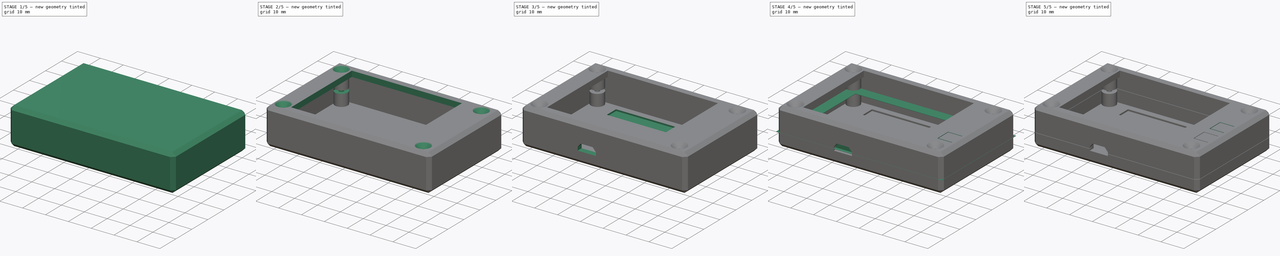
[diagram: build sequence overview — one tinted view per stage of 5, left to right]
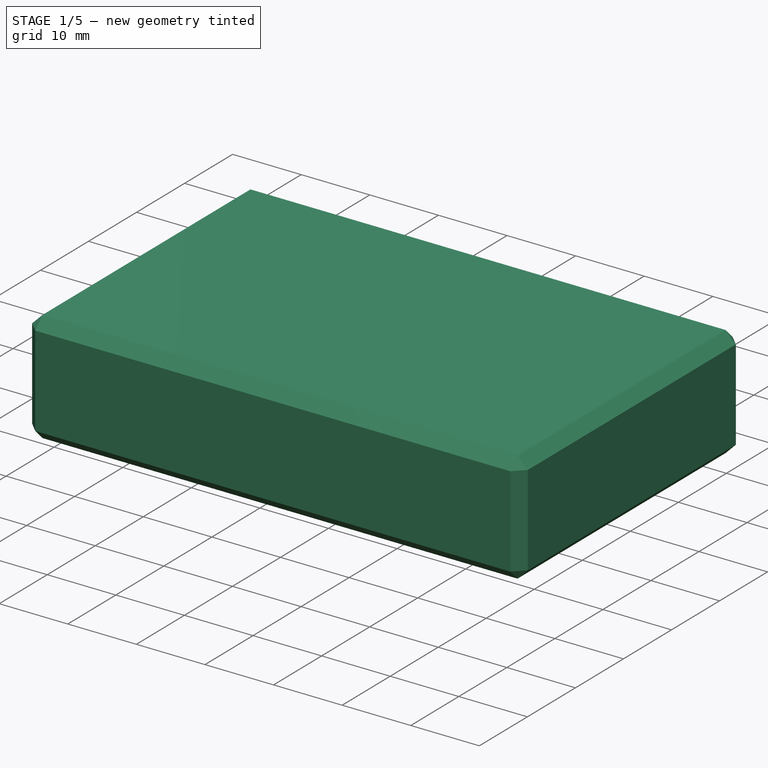
[diagram: stage 1 of 5 — iso view after this stage's code; geometry added in this stage tinted green]
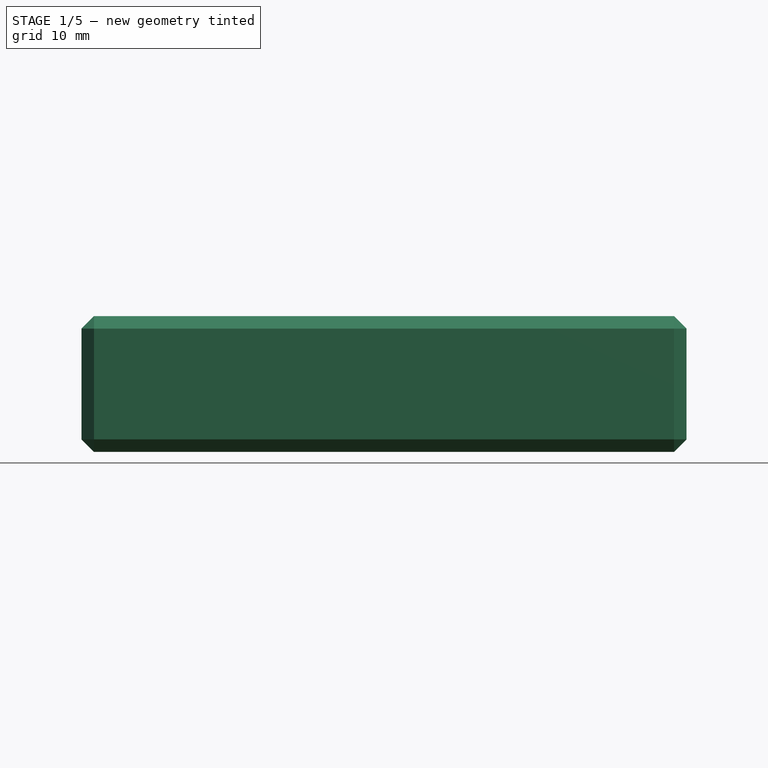
[diagram: stage 1 of 5 — front view after this stage's code; geometry added in this stage tinted green]
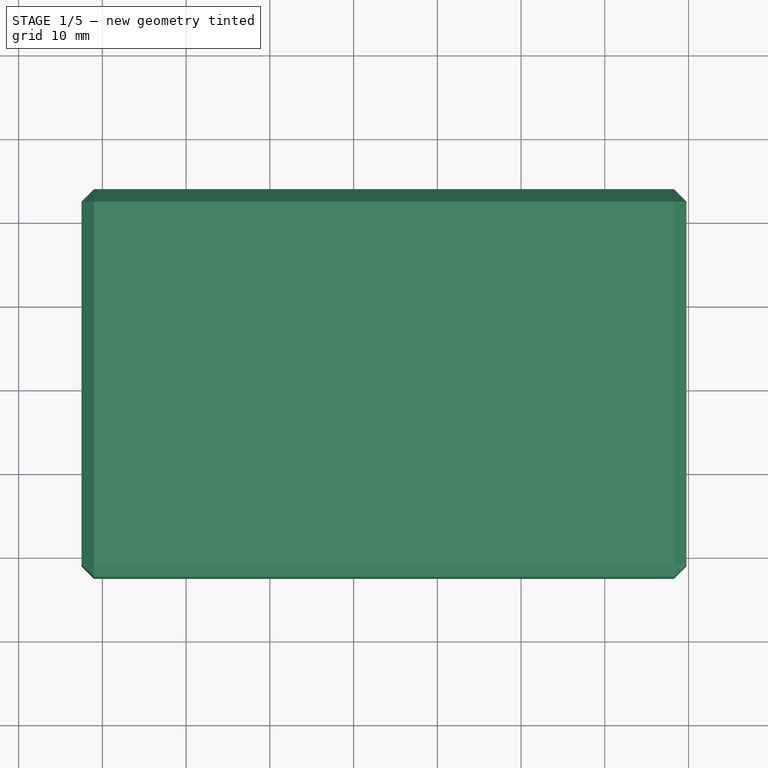
[diagram: stage 1 of 5 — top view after this stage's code; geometry added in this stage tinted green]
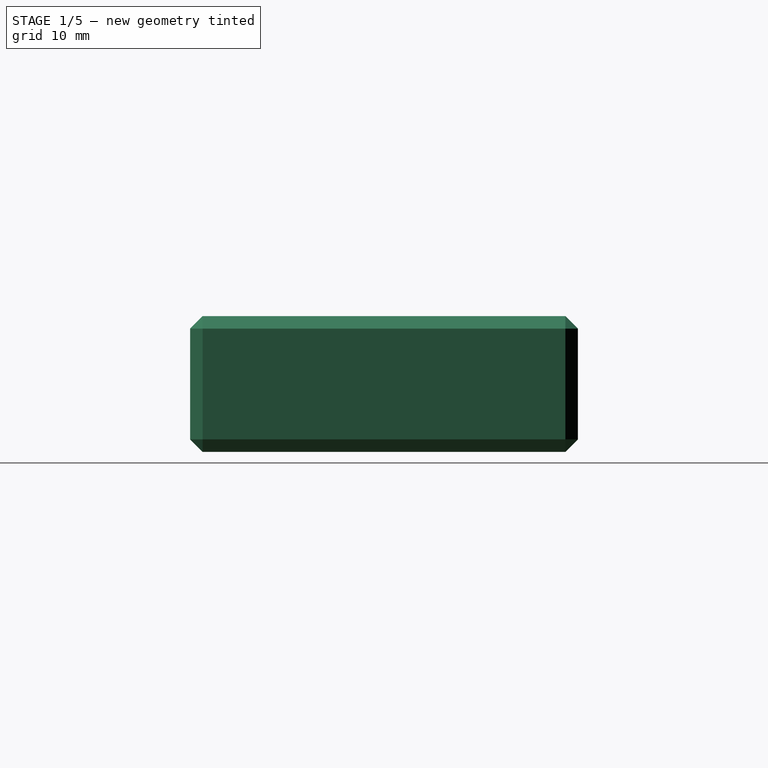
[diagram: stage 1 of 5 — right view after this stage's code; geometry added in this stage tinted green]
FCSTD DOCUMENT  (FreeCAD 0.21R33771 (Git))
Label: case
License: All rights reserved
LicenseURL: http://en.wikipedia.org/wiki/All_rights_reserved
objects: Sketcher::SketchObject×13, PartDesign::Pocket×9, PartDesign::Pad×3, Part::FeaturePython×3, PartDesign::Hole×2, PartDesign::Body×2, App::Link×2, Spreadsheet::Sheet×1, PartDesign::Chamfer×1, PartDesign::SubShapeBinder×1, PartDesign::AdditivePipe×1, App::DocumentObjectGroup×1, PartDesign::LinearPattern×1
note: 52 computed .brp shape members not serialized (recipe doc carries the construction recipe); baked Part::Feature solids carry a one-line shape summary decoded from their .brp

FEATURE [Spreadsheet::Sheet] Spreadsheet  label="Param"
  cells = A1='Key; B1='Value; C1='Comment; A2='T_XY; B2(T_XY)==0.08 mm; C2='X/Y tolerancy.; A3='T_Z; B3(T_Z)==0.06 mm; C3='Z tolerancy.; A4='T_LAYER; B4(T_LAYER)==0.2 mm; C4='Layer thickness.; A5='T_WALL; B5(T_WALL)==2.5 mm; C5='Wall thickness.; A6='T_PCB; B6(T_PCB)==1.2 mm; C6='PCB thickness.; A7='W_BASE; B7(W_BASE)==66.6 mm; C7='Base width.; A8='H_BASE; B8(H_BASE)==40.65 mm; C8='Base height.; A9='D_BASE; B9(D_BASE)==10.6 mm; C9='Base depth.; A10='W_SCREEN; B10(W_SCREEN)==48 mm; C10='Screen width.; A11='H_SCREEN; B11(H_SCREEN)==37.8 mm; C11='Screen height.; A12='Y_TOP; B12(Y_TOP)==4.5 mm; C12='PCB base to screen top distance.; A13='S_SIDE; B13(S_SIDE)==0.25 mm; C13='Side spacing.; A14='H_LATCH; B14(H_LATCH)==2 mm; C14='Wall latch height.; A15='T_BUTTON; B15(T_BUTTON)==1 mm; C15='Button cap thickness (needs to be less than T_WALL).; A16='D_SCREW; B16(D_SCREW)==2.25 mm; C16='Screw hole diameter.; A17='R_CORNER; B17(R_CORNER)==1.5 mm; C17='Corner radius.
FEATURE [Sketcher::SketchObject] Sketch  label="OuterSketch"
  AttachmentOffset = pos=(0,0,-2.81) rot=(0,0,1;0rad)
  FullyConstrained = true
  MapMode = 5
  Placement = pos=(0,0,-2.81) rot=(0,0,1;0rad)
  Support = -> [XY_Plane]
  expr: .AttachmentOffset.Base.z = -(<<Param>>.T_WALL + <<Param>>.S_SIDE + <<Param>>.T_Z)
  expr: Constraints[10] = <<Param>>.T_WALL
  expr: Constraints[11] = <<Param>>.T_WALL
  expr: Constraints[7] = <<Param>>.W_BASE + 2 * (<<Param>>.T_WALL + <<Param>>.S_SIDE + <<Param>>.T_XY)
  expr: Constraints[8] = <<Param>>.H_BASE + 2 * (<<Param>>.T_WALL + <<Param>>.S_SIDE + <<Param>>.T_XY)
  sketch-geometry (4):
    g0: LineSegment StartX=-2.5 StartY=-2.5 StartZ=0 EndX=69.76 EndY=-2.5 EndZ=0
    g1: LineSegment StartX=69.76 StartY=-2.5 StartZ=0 EndX=69.76 EndY=43.81 EndZ=0
    g2: LineSegment StartX=69.76 StartY=43.81 StartZ=0 EndX=-2.5 EndY=43.81 EndZ=0
    g3: LineSegment StartX=-2.5 StartY=43.81 StartZ=0 EndX=-2.5 EndY=-2.5 EndZ=0
  constraints (12):
    c: Coincident(g0,g1)
    c: Coincident(g1,g2)
    c: Coincident(g2,g3)
    c: Horizontal(g0)
    c: Horizontal(g2)
    c: Vertical(g1)
    c: Vertical(g3)
    c: DistanceX(g0,g0) = 72.26
    c: DistanceY(g1,g1) = 46.31
    c: Coincident(g0,g3)
    c: DistanceX(g0,g-1) = 2.5
    c: DistanceY(g0,g-1) = 2.5
FEATURE [PartDesign::Pad] Pad  label="OuterPad"
  Direction = (0,0,1)
  Length = 16.22
  Length2 = 10
  Profile = -> Sketch
  ReferenceAxis = -> Sketch [N_Axis]
  Type = 0
  expr: Length = <<Param>>.D_BASE + 2 * (<<Param>>.T_WALL + <<Param>>.S_SIDE + <<Param>>.T_Z)
FEATURE [PartDesign::Chamfer] Chamfer  label="OuterChamfer"
  Angle = 45
  Base = -> Pad [Face6,Face1,Face5,Face2,Face3,Face4]
  BaseFeature = -> Pad
  ChamferType = 0
  FlipDirection = false
  Size = 1.5
  Size2 = 1
  SupportTransform = false
  UseAllEdges = true
  expr: Size = <<Param>>.R_CORNER
FEATURE [Sketcher::SketchObject] Sketch001  label="InnerSketch"
  AttachmentOffset = pos=(0,0,-0.31) rot=(0,0,1;0rad)
  FullyConstrained = true
  MapMode = 5
  Placement = pos=(0,0,-0.31) rot=(0,0,1;0rad)
  Support = -> [XY_Plane]
  expr: .AttachmentOffset.Base.z = -(<<Param>>.S_SIDE + <<Param>>.T_Z)
  expr: .Constraints.H1 = <<Param>>.H_BASE + 2 * (<<Param>>.S_SIDE + <<Param>>.T_XY)
  expr: .Constraints.W1 = <<Param>>.W_BASE + 2 * (<<Param>>.S_SIDE + <<Param>>.T_XY)
  sketch-geometry (4):
    g0: LineSegment StartX=0 StartY=0 StartZ=0 EndX=67.26 EndY=0 EndZ=0
    g1: LineSegment StartX=67.26 StartY=0 StartZ=0 EndX=67.26 EndY=41.31 EndZ=0
    g2: LineSegment StartX=67.26 StartY=41.31 StartZ=0 EndX=0 EndY=41.31 EndZ=0
    g3: LineSegment StartX=0 StartY=41.31 StartZ=0 EndX=0 EndY=0 EndZ=0
  constraints (11):
    c: Coincident(g0,g1)
    c: Coincident(g1,g2)
    c: Coincident(g2,g3)
    c: Coincident(g3,g0)
    c: Horizontal(g0)
    c: Horizontal(g2)
    c: Vertical(g1)
    c: Vertical(g3)
    c: Coincident(g0,g-1)
    c: DistanceX(g0,g0) = 67.26  'W1'
    c: DistanceY(g1,g1) = 41.31  'H1'
FEATURE [PartDesign::Pocket] Pocket  label="InnerPocket"
  BaseFeature = -> Chamfer
  Direction = (0,0,-1)
  Length = 11.22
  Length2 = 5
  Profile = -> Sketch001
  ReferenceAxis = -> Sketch001 [N_Axis]
  Reversed = true
  Type = 0
  expr: Length = <<Param>>.D_BASE + 2 * (<<Param>>.S_SIDE + <<Param>>.T_Z)
FEATURE [Sketcher::SketchObject] Sketch002  label="UpperScrewHolesSketch"
  AttachmentOffset = pos=(0,0,13.41) rot=(0,0,1;0rad)
  FullyConstrained = true
  MapMode = 5
  Placement = pos=(0,0,13.41) rot=(0,0,1;0rad)
  Support = -> [XY_Plane]
  expr: .AttachmentOffset.Base.z = <<Param>>.D_BASE + <<Param>>.S_SIDE + <<Param>>.T_WALL + <<Param>>.T_Z
  expr: .Constraints.X1 = <<SpacersSketch>>.Constraints.X1
  expr: .Constraints.Y1 = <<SpacersSketch>>.Constraints.Y1
  expr: Constraints[19] = <<Param>>.D_SCREW / 2
  expr: Constraints[8] = <<SpacersSketch>>.Constraints.W1
  expr: Constraints[9] = <<SpacersSketch>>.Constraints.H1
  sketch-geometry (8):
    g0: LineSegment StartX=2.38 StartY=2.43 StartZ=0 EndX=63.63 EndY=2.43 EndZ=0
    g1: LineSegment StartX=63.63 StartY=2.43 StartZ=0 EndX=63.63 EndY=38.63 EndZ=0
    g2: LineSegment StartX=63.63 StartY=38.63 StartZ=0 EndX=2.38 EndY=38.63 EndZ=0
    g3: LineSegment StartX=2.38 StartY=38.63 StartZ=0 EndX=2.38 EndY=2.43 EndZ=0
    g4: Circle CenterX=2.38 CenterY=38.63 CenterZ=0 NormalX=0 NormalY=0 NormalZ=1 AngleXU=0 Radius=1.125
    g5: Circle CenterX=63.63 CenterY=38.63 CenterZ=0 NormalX=0 NormalY=0 NormalZ=1 AngleXU=0 Radius=1.125
    g6: Circle CenterX=63.63 CenterY=2.43 CenterZ=0 NormalX=0 NormalY=0 NormalZ=1 AngleXU=0 Radius=1.125
    g7: Circle CenterX=2.38 CenterY=2.43 CenterZ=0 NormalX=0 NormalY=0 NormalZ=1 AngleXU=0 Radius=1.125
  constraints (20):
    c: Coincident(g0,g1)
    c: Coincident(g1,g2)
    c: Coincident(g2,g3)
    c: Coincident(g3,g0)
    c: Horizontal(g0)
    c: Horizontal(g2)
    c: Vertical(g1)
    c: Vertical(g3)
    c: DistanceX(g0,g0) = 61.25
    c: DistanceY(g1,g1) = 36.2
    c: DistanceX(g-1,g0) = 2.38  'X1'
    c: DistanceY(g-1,g0) = 2.43  'Y1'
    c: Coincident(g4,g2)
    c: Coincident(g5,g1)
    c: Coincident(g6,g0)
    c: Coincident(g7,g0)
    c: Equal(g4,g7)
    c: Equal(g7,g6)
    c: Equal(g6,g5)
    c: Radius(g4) = 1.125
FEATURE [Sketcher::SketchObject] Sketch003  label="SpacersSketch"
  AttachmentOffset = pos=(0,0,-0.31) rot=(0,0,1;0rad)
  FullyConstrained = true
  MapMode = 5
  Placement = pos=(0,0,-0.31) rot=(0,0,1;0rad)
  Support = -> [XY_Plane]
  expr: .AttachmentOffset.Base.z = <<InnerSketch>>.Placement.Base.z
  expr: .Constraints.H1 = 36.2 mm
  expr: .Constraints.W1 = 61.25 mm
  expr: .Constraints.X1 = 2.05 mm + <<Param>>.S_SIDE + <<Param>>.T_XY
  expr: .Constraints.Y1 = 2.1 mm + <<Param>>.S_SIDE + <<Param>>.T_XY
  expr: Constraints[19] = 2.8 mm
  sketch-geometry (8):
    g0: LineSegment StartX=2.38 StartY=2.43 StartZ=0 EndX=63.63 EndY=2.43 EndZ=0
    g1: LineSegment StartX=63.63 StartY=2.43 StartZ=0 EndX=63.63 EndY=38.63 EndZ=0
    g2: LineSegment StartX=63.63 StartY=38.63 StartZ=0 EndX=2.38 EndY=38.63 EndZ=0
    g3: LineSegment StartX=2.38 StartY=38.63 StartZ=0 EndX=2.38 EndY=2.43 EndZ=0
    g4: Circle CenterX=2.38 CenterY=38.63 CenterZ=0 NormalX=0 NormalY=0 NormalZ=1 AngleXU=0 Radius=2.8
    g5: Circle CenterX=63.63 CenterY=38.63 CenterZ=0 NormalX=0 NormalY=0 NormalZ=1 AngleXU=0 Radius=2.8
    g6: Circle CenterX=63.63 CenterY=2.43 CenterZ=0 NormalX=0 NormalY=0 NormalZ=1 AngleXU=0 Radius=2.8
    g7: Circle CenterX=2.38 CenterY=2.43 CenterZ=0 NormalX=0 NormalY=0 NormalZ=1 AngleXU=0 Radius=2.8
  constraints (20):
    c: Coincident(g0,g1)
    c: Coincident(g1,g2)
    c: Coincident(g2,g3)
    c: Coincident(g3,g0)
    c: Horizontal(g0)
    c: Horizontal(g2)
    c: Vertical(g1)
    c: Vertical(g3)
    c: DistanceX(g0,g0) = 61.25  'W1'
    c: DistanceY(g1,g1) = 36.2  'H1'
    c: DistanceX(g-1,g0) = 2.38  'X1'
    c: DistanceY(g-1,g0) = 2.43  'Y1'
    c: Coincident(g4,g2)
    c: Coincident(g5,g1)
    c: Coincident(g6,g0)
    c: Coincident(g7,g0)
    c: Equal(g4,g7)
    c: Equal(g7,g6)
    c: Equal(g6,g5)
    c: Radius(g4) = 2.8
FEATURE [PartDesign::Pad] Pad001  label="SpacersPad"
  BaseFeature = -> Pocket
  Direction = (0,0,1)
  Length = 11.22
  Length2 = 10
  Profile = -> Sketch003
  ReferenceAxis = -> Sketch003 [N_Axis]
  Type = 0
  expr: Length = <<InnerPocket>>.Length
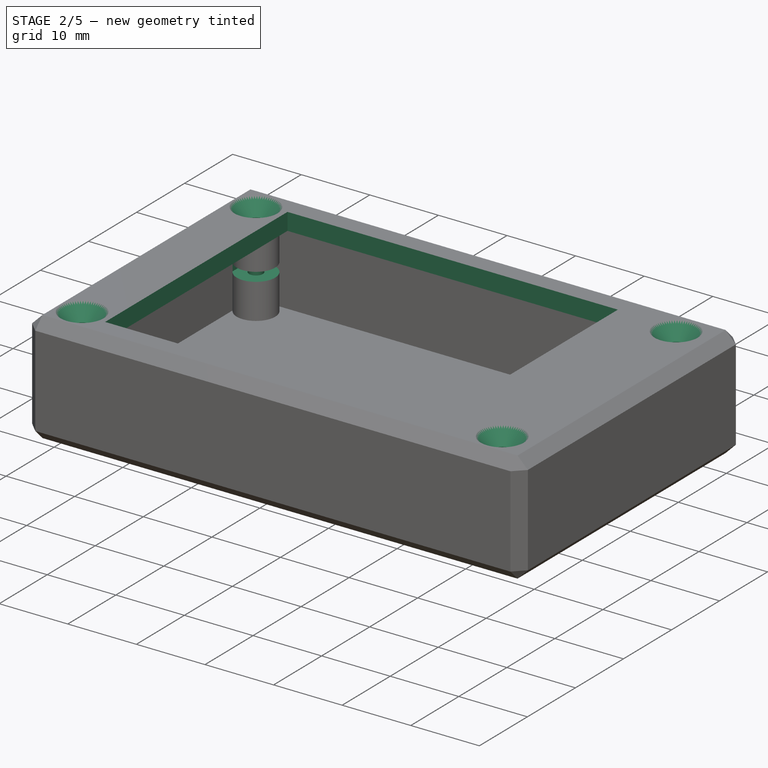
[diagram: stage 2 of 5 — iso view after this stage's code; geometry added in this stage tinted green]
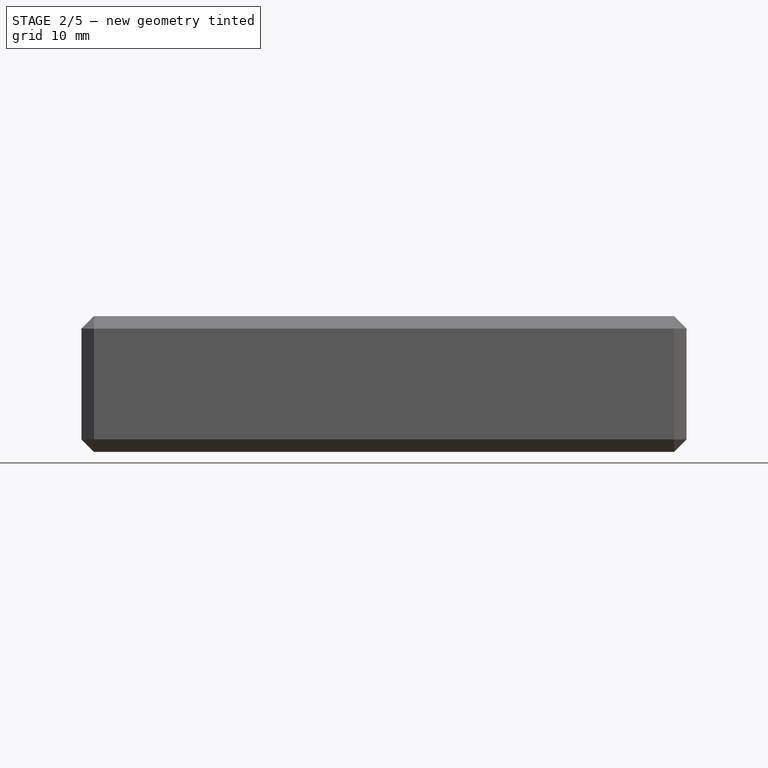
[diagram: stage 2 of 5 — front view after this stage's code; geometry added in this stage tinted green]
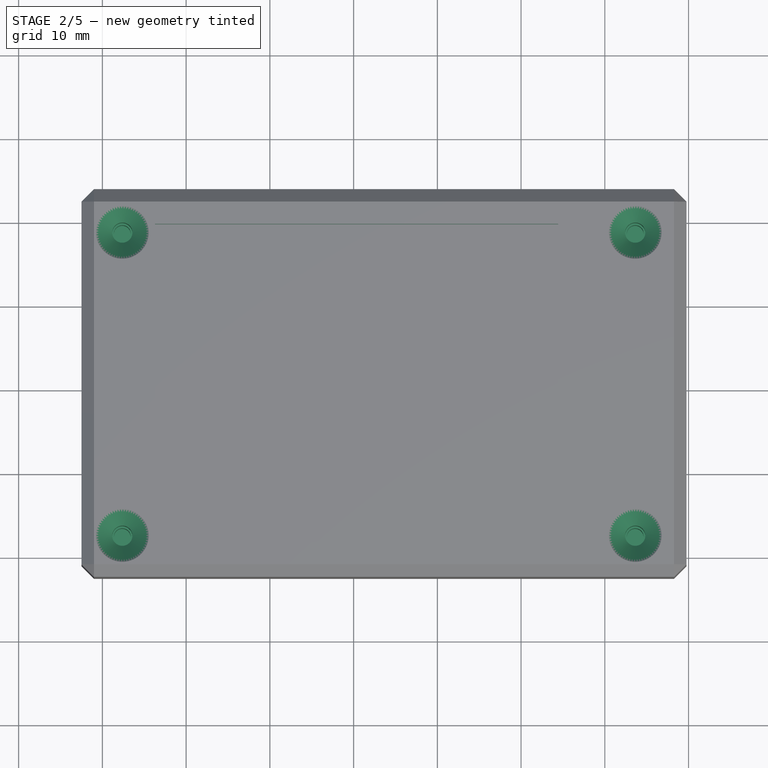
[diagram: stage 2 of 5 — top view after this stage's code; geometry added in this stage tinted green]
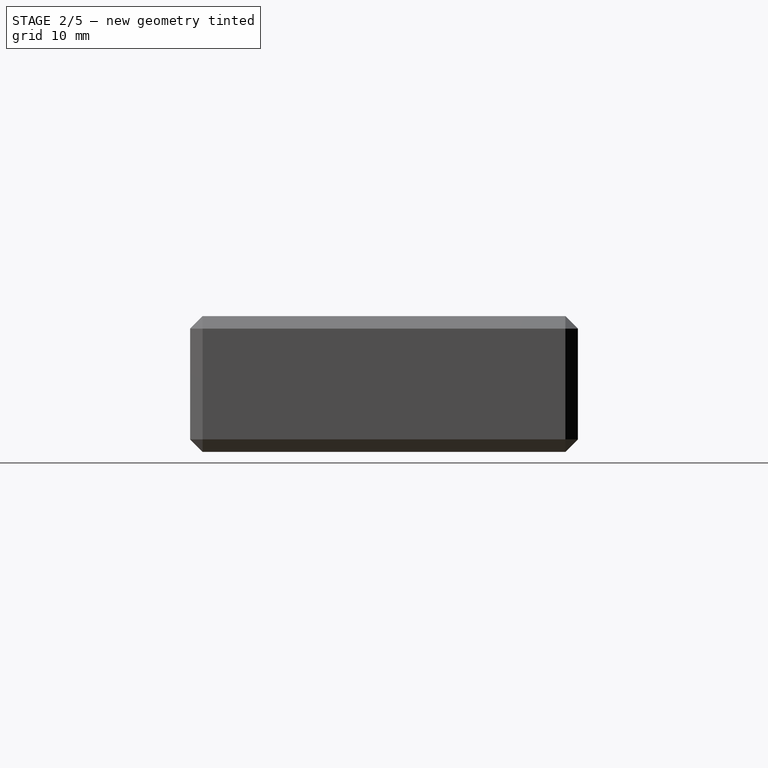
[diagram: stage 2 of 5 — right view after this stage's code; geometry added in this stage tinted green]
FEATURE [PartDesign::SubShapeBinder] Binder  label="InnerSketchBinder"
  BindCopyOnChange = 0
  BindMode = 0
  ClaimChildren = false
  Context = -> Body [Binder.]
  Fuse = false
  MakeFace = true
  OffsetFill = false
  OffsetIntersection = false
  OffsetJoinType = 0
  OffsetOpenResult = false
  PartialLoad = false
  Placement = pos=(0,0,6.47) rot=(0,0,1;0rad)
  Relative = true
  Support = -> [Pocket[Sketch001.]]
  _Version = 2
  expr: .Placement.Base.z = <<InnerPocket>>.Length - <<Param>>.S_SIDE - <<Param>>.Y_TOP
FEATURE [Sketcher::SketchObject] Sketch005  label="ScreenBaseSketch"
  AttachmentOffset = pos=(0,0,6.47) rot=(0,0,1;0rad)
  FullyConstrained = true
  MapMode = 5
  Placement = pos=(0,0,6.47) rot=(0,0,1;0rad)
  Support = -> [XY_Plane]
  expr: .AttachmentOffset.Base.z = <<InnerSketchBinder>>.Placement.Base.z
  expr: Constraints[19] = <<InnerSketch>>.Constraints.W1
  expr: Constraints[20] = <<InnerSketch>>.Constraints.H1
  expr: Constraints[24] = <<UpperScrewHolesSketch>>.Constraints.X1 + 0.9 mm
  expr: Constraints[8] = <<Param>>.W_SCREEN + 2 * <<Param>>.T_XY
  expr: Constraints[9] = <<Param>>.H_SCREEN + 2 * <<Param>>.T_XY
  sketch-geometry (10):
    g0: LineSegment StartX=6.27 StartY=1.675 StartZ=0 EndX=54.43 EndY=1.675 EndZ=0
    g1: LineSegment StartX=54.43 StartY=1.675 StartZ=0 EndX=54.43 EndY=39.635 EndZ=0
    g2: LineSegment StartX=54.43 StartY=39.635 StartZ=0 EndX=6.27 EndY=39.635 EndZ=0
    g3: LineSegment StartX=6.27 StartY=39.635 StartZ=0 EndX=6.27 EndY=1.675 EndZ=0
    g4: LineSegment StartX=0 StartY=0 StartZ=0 EndX=67.26 EndY=0 EndZ=0
    g5: LineSegment StartX=67.26 StartY=0 StartZ=0 EndX=67.26 EndY=41.31 EndZ=0
    g6: LineSegment StartX=67.26 StartY=41.31 StartZ=0 EndX=0 EndY=41.31 EndZ=0
    g7: LineSegment StartX=0 StartY=41.31 StartZ=0 EndX=0 EndY=0 EndZ=0
    g8: GeomPoint X=33.63 Y=20.655 Z=0
    g9: GeomPoint X=30.35 Y=20.655 Z=0
  constraints (25):
    c: Coincident(g0,g1)
    c: Coincident(g1,g2)
    c: Coincident(g2,g3)
    c: Coincident(g3,g0)
    c: Horizontal(g0)
    c: Horizontal(g2)
    c: Vertical(g1)
    c: Vertical(g3)
    c: DistanceX(g0,g0) = 48.16
    c: DistanceY(g1,g1) = 37.96
    c: Coincident(g4,g5)
    c: Coincident(g5,g6)
    c: Coincident(g6,g7)
    c: Coincident(g7,g4)
    c: Horizontal(g4)
    c: Horizontal(g6)
    c: Vertical(g5)
    c: Vertical(g7)
    c: Coincident(g4,g-1)
    c: DistanceX(g4,g4) = 67.26
    c: DistanceY(g5,g5) = 41.31
    c: Symmetric(g4,g5,g8)
    c: Symmetric(g0,g1,g9)
    c: Horizontal(g9,g8)
    c: DistanceX(g9,g8) = 3.28
FEATURE [PartDesign::Hole] Hole  label="UpperScrewHoles"
  BaseFeature = -> Pad001
  CustomThreadClearance = 0
  Depth = 7.31
  DepthType = 0
  Diameter = 2.41
  DrillForDepth = false
  DrillPoint = 0
  DrillPointAngle = 118
  HoleCutCountersinkAngle = 90
  HoleCutCustomValues = false
  HoleCutDepth = 0
  HoleCutDiameter = 6.3
  HoleCutType = 2
  ModelThread = false
  Profile = -> Sketch002
  Tapered = false
  TaperedAngle = 90
  ThreadClass = 0
  ThreadDepth = 7.31
  ThreadDepthType = 0
  ThreadDirection = 0
  ThreadFit = 1
  ThreadSize = 0
  ThreadType = 0
  Threaded = false
  UseCustomThreadClearance = false
  expr: Depth = <<Param>>.T_WALL + <<Param>>.S_SIDE + <<Param>>.T_Z + <<Param>>.Y_TOP
  expr: Diameter = <<Param>>.D_SCREW + 2 * <<Param>>.T_XY
FEATURE [PartDesign::Hole] Hole001  label="InnerScrewHoles"
  BaseFeature = -> Hole
  CustomThreadClearance = 0
  Depth = 13.72
  DepthType = 0
  Diameter = 2.01
  DrillForDepth = false
  DrillPoint = 0
  DrillPointAngle = 118
  HoleCutCountersinkAngle = 90
  HoleCutCustomValues = false
  HoleCutDepth = 0
  HoleCutDiameter = 6.1
  HoleCutType = 0
  ModelThread = false
  Profile = -> Sketch002
  Tapered = false
  TaperedAngle = 90
  ThreadClass = 0
  ThreadDepth = 13.72
  ThreadDepthType = 0
  ThreadDirection = 0
  ThreadFit = 0
  ThreadSize = 0
  ThreadType = 0
  Threaded = false
  UseCustomThreadClearance = false
  expr: Depth = <<Param>>.T_WALL + <<InnerPocket>>.Length
  expr: Diameter = <<Param>>.D_SCREW - 0.4 mm + 2 * <<Param>>.T_XY
FEATURE [PartDesign::Pocket] Pocket002  label="PcbPocket"
  BaseFeature = -> Hole001
  Direction = (0,0,-1)
  Length = 1.32
  Length2 = 5
  Profile = -> Binder
  Type = 0
  expr: Length = <<Param>>.T_PCB + 2 * <<Param>>.T_Z
FEATURE [PartDesign::Pocket] Pocket003  label="ScreenBasePocket"
  BaseFeature = -> Pocket002
  Direction = (0,0,-1)
  Length = 5
  Length2 = 5
  Profile = -> Sketch005
  ReferenceAxis = -> Sketch005 [N_Axis]
  Reversed = true
  Type = 1
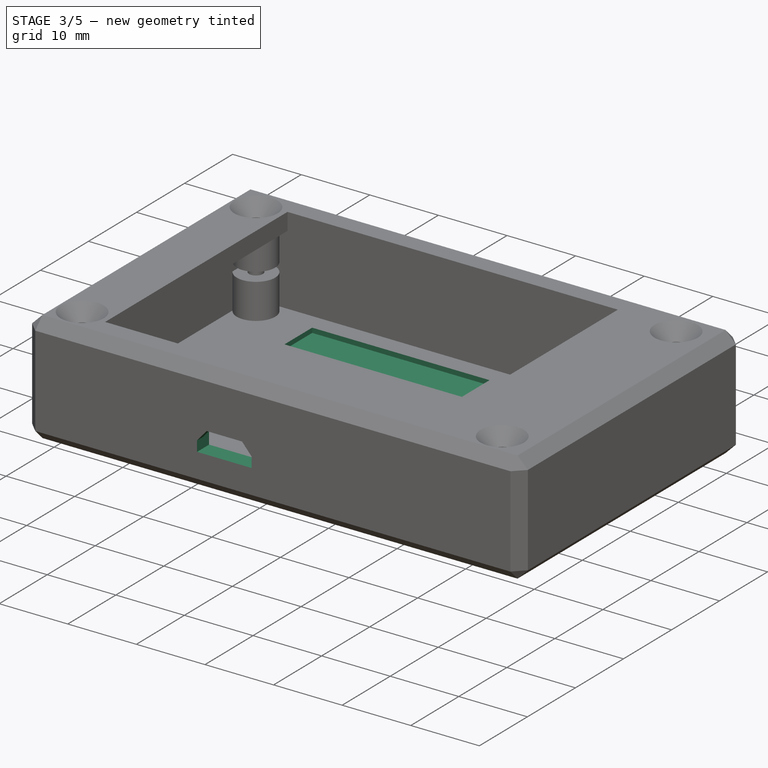
[diagram: stage 3 of 5 — iso view after this stage's code; geometry added in this stage tinted green]
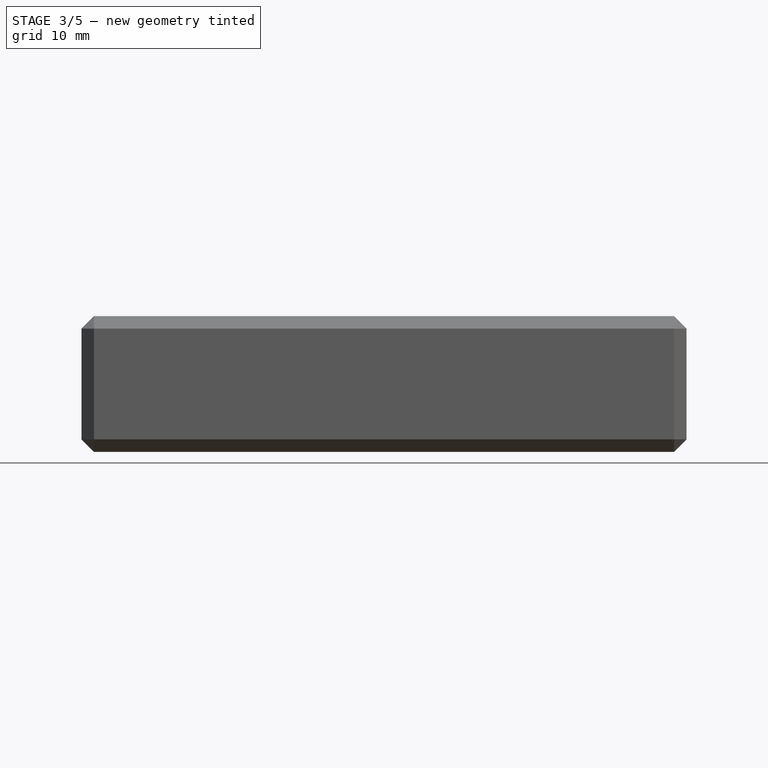
[diagram: stage 3 of 5 — front view after this stage's code; geometry added in this stage tinted green]
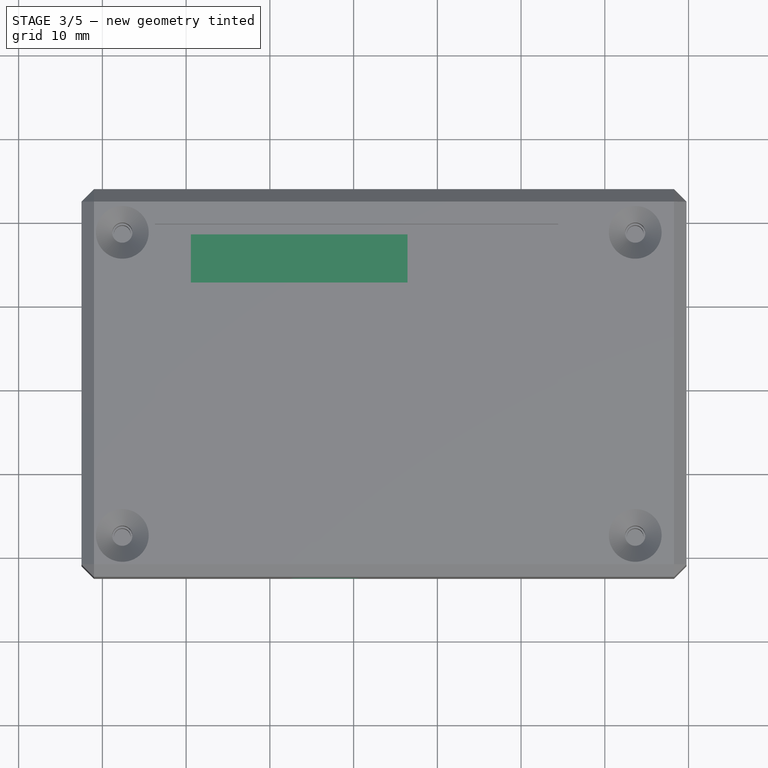
[diagram: stage 3 of 5 — top view after this stage's code; geometry added in this stage tinted green]
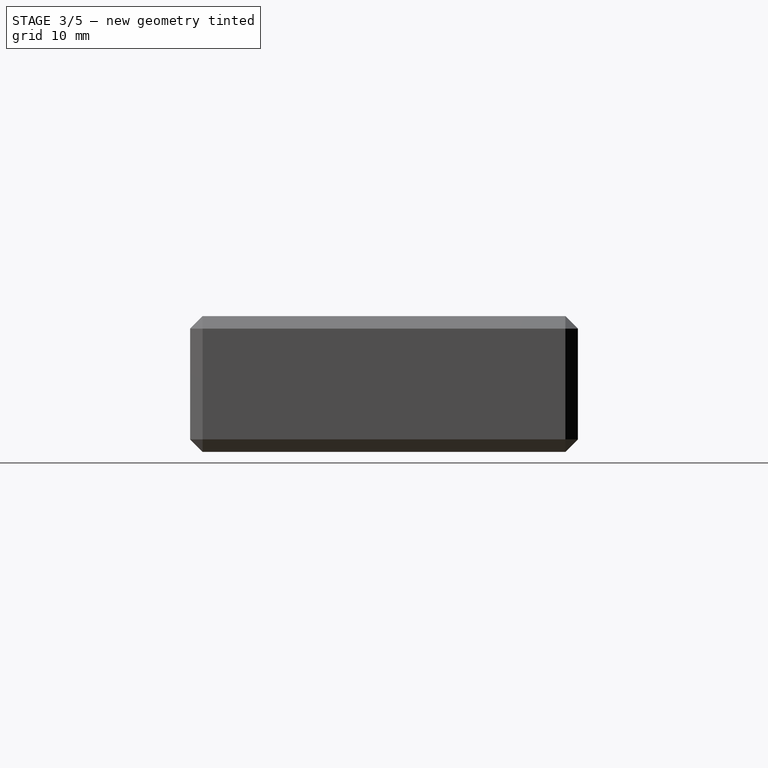
[diagram: stage 3 of 5 — right view after this stage's code; geometry added in this stage tinted green]
FEATURE [PartDesign::Body] Body001  label="Gap"
  Group = -> [Sketch010,AdditivePipe]
  Origin = -> Origin001
  Tip = -> AdditivePipe
FEATURE [Sketcher::SketchObject] Sketch011  label="InnerUsbSketch"
  FullyConstrained = true
  MapMode = 5
  Placement = pos=(0,0,0) rot=(1,0,0;1.5708rad)
  Support = -> [XZ_Plane]
  expr: Constraints[10] = <<UsbSketch>>.Constraints.W1
  expr: Constraints[11] = <<UsbSketch>>.Constraints.H1
  expr: Constraints[8] = <<UsbSketch>>.Constraints.X1
  expr: Constraints[9] = <<UsbSketch>>.Constraints.Y1
  sketch-geometry (4):
    g0: LineSegment StartX=22.59 StartY=5.37 StartZ=0 EndX=30.55 EndY=5.37 EndZ=0
    g1: LineSegment StartX=30.55 StartY=5.37 StartZ=0 EndX=30.55 EndY=2.25 EndZ=0
    g2: LineSegment StartX=30.55 StartY=2.25 StartZ=0 EndX=22.59 EndY=2.25 EndZ=0
    g3: LineSegment StartX=22.59 StartY=2.25 StartZ=0 EndX=22.59 EndY=5.37 EndZ=0
  constraints (12):
    c: Coincident(g0,g1)
    c: Coincident(g1,g2)
    c: Coincident(g2,g3)
    c: Coincident(g3,g0)
    c: Horizontal(g0)
    c: Horizontal(g2)
    c: Vertical(g1)
    c: Vertical(g3)
    c: DistanceX(g0) = 22.59
    c: DistanceY(g0) = 5.37
    c: DistanceX(g0,g0) = 7.96
    c: DistanceY(g1,g1) = 3.12
FEATURE [Sketcher::SketchObject] Sketch012  label="ButtonCarveSketch"
  AttachmentOffset = pos=(0,0,-8.03) rot=(0,0,1;0rad)
  FullyConstrained = true
  MapMode = 5
  Placement = pos=(0,8.03,1.8e-15) rot=(1,0,0;1.5708rad)
  Support = -> [XZ_Plane]
  expr: .AttachmentOffset.Base.z = -<<ButtonSketch>>.Constraints.Y1
  expr: .Constraints.Y1 = <<InnerPocket>>.Length - <<Param>>.S_SIDE - <<Param>>.T_Z
  expr: .Constraints.Y2 = <<InnerPocket>>.Length - <<Param>>.S_SIDE - 2 * <<Param>>.T_Z + <<Param>>.T_WALL - <<Param>>.T_BUTTON
  expr: .Constraints.Y3 = <<InnerPocket>>.Length - <<Param>>.S_SIDE - 2 * <<Param>>.T_Z + <<Param>>.T_WALL - <<Param>>.T_LAYER
  expr: Constraints[10] = <<ButtonSketch>>.Constraints.X1
  expr: Constraints[14] = <<ButtonSketch>>.Constraints.W2
  sketch-geometry (5):
    g0: LineSegment StartX=66.21 StartY=12.35 StartZ=0 EndX=60.75 EndY=12.35 EndZ=0
    g1: LineSegment StartX=60.75 StartY=12.35 StartZ=0 EndX=60.75 EndY=10.91 EndZ=0
    g2: LineSegment StartX=60.75 StartY=10.91 StartZ=0 EndX=67.01 EndY=10.91 EndZ=0
    g3: LineSegment StartX=67.01 StartY=10.91 StartZ=0 EndX=67.01 EndY=13.15 EndZ=0
    g4: LineSegment StartX=67.01 StartY=13.15 StartZ=0 EndX=66.21 EndY=12.35 EndZ=0
  constraints (15):
    c: Horizontal(g0)
    c: Coincident(g0,g1)
    c: Vertical(g1)
    c: Coincident(g1,g2)
    c: Horizontal(g2)
    c: Coincident(g2,g3)
    c: Vertical(g3)
    c: Coincident(g3,g4)
    c: Coincident(g4,g0)
    c: Angle(g4,g3) = 0.785398
    c: DistanceX(g2) = 67.01
    c: DistanceY(g0) = 12.35  'Y2'
    c: DistanceY(g3) = 13.15  'Y3'
    c: DistanceY(g1) = 10.91  'Y1'
    c: DistanceX(g2,g2) = 6.26
FEATURE [App::Link] Link  label="PO_Top"
  LinkPlacement = pos=(-8.49,0,10.6) rot=(0,1,0;3.14159rad)
  LinkedObject = -> Slice_child0
  Placement = pos=(-8.49,0,10.6) rot=(0,1,0;3.14159rad)
  expr: .Placement.Base.x = -3 * (<<Param>>.T_WALL + <<Param>>.S_SIDE + <<Param>>.T_XY)
  expr: .Placement.Base.z = <<Param>>.D_BASE
FEATURE [App::Link] Link001  label="PO_Bottom"
  LinkedObject = -> Slice_child2
FEATURE [App::DocumentObjectGroup] Group  label="PrintOrientation"
  Group = -> [Link,Link001]
FEATURE [Sketcher::SketchObject] Sketch013  label="PinHeaderSketch"
  FullyConstrained = true
  MapMode = 5
  Support = -> [XY_Plane]
  expr: Constraints[10] = 5.1 mm + 2 * (<<Param>>.S_SIDE + <<Param>>.T_XY)
  expr: Constraints[11] = 25.2 mm + 2 * (<<Param>>.S_SIDE + <<Param>>.T_XY)
  expr: Constraints[8] = 10.9 mm - <<Param>>.S_SIDE - <<Param>>.T_XY
  expr: Constraints[9] = 33.2 mm - <<Param>>.S_SIDE - <<Param>>.T_XY
  sketch-geometry (4):
    g0: LineSegment StartX=10.57 StartY=38.63 StartZ=0 EndX=36.43 EndY=38.63 EndZ=0
    g1: LineSegment StartX=36.43 StartY=38.63 StartZ=0 EndX=36.43 EndY=32.87 EndZ=0
    g2: LineSegment StartX=36.43 StartY=32.87 StartZ=0 EndX=10.57 EndY=32.87 EndZ=0
    g3: LineSegment StartX=10.57 StartY=32.87 StartZ=0 EndX=10.57 EndY=38.63 EndZ=0
  constraints (12):
    c: Coincident(g0,g1)
    c: Coincident(g1,g2)
    c: Coincident(g2,g3)
    c: Coincident(g3,g0)
    c: Horizontal(g0)
    c: Horizontal(g2)
    c: Vertical(g1)
    c: Vertical(g3)
    c: DistanceX(g2) = 10.57
    c: DistanceY(g2) = 32.87
    c: DistanceY(g1,g1) = 5.76
    c: DistanceX(g0,g0) = 25.86
FEATURE [PartDesign::Pocket] Pocket009  label="PinHeaderPocket"
  BaseFeature = -> Pocket003
  Direction = (0,0,-1)
  Length = 1
  Length2 = 5
  Profile = -> Sketch013
  ReferenceAxis = -> Sketch013 [N_Axis]
  Type = 0
FEATURE [PartDesign::Pocket] Pocket004  label="TasterPocket"
  BaseFeature = -> Pocket009
  Direction = (0,0,-1)
  Length = 2.47
  Length2 = 5
  Profile = -> Sketch006
  ReferenceAxis = -> Sketch006 [N_Axis]
  Type = 0
  expr: Length = 2.35 mm + 2 * <<Param>>.T_Z
FEATURE [PartDesign::Pocket] Pocket005  label="UsbPocket"
  BaseFeature = -> Pocket004
  Direction = (0,1,2e-16)
  Length = 5
  Length2 = 5
  Profile = -> Sketch007
  ReferenceAxis = -> Sketch007 [N_Axis]
  Reversed = true
  Type = 1
FEATURE [PartDesign::Pocket] Pocket007  label="InnerUsbPocket"
  BaseFeature = -> Pocket005
  Direction = (0,1,2e-16)
  Length = 1.33
  Length2 = 5
  Profile = -> Sketch011
  ReferenceAxis = -> Sketch011 [N_Axis]
  Reversed = true
  Type = 0
  expr: Length = <<Param>>.T_WALL / 2 + <<Param>>.T_XY
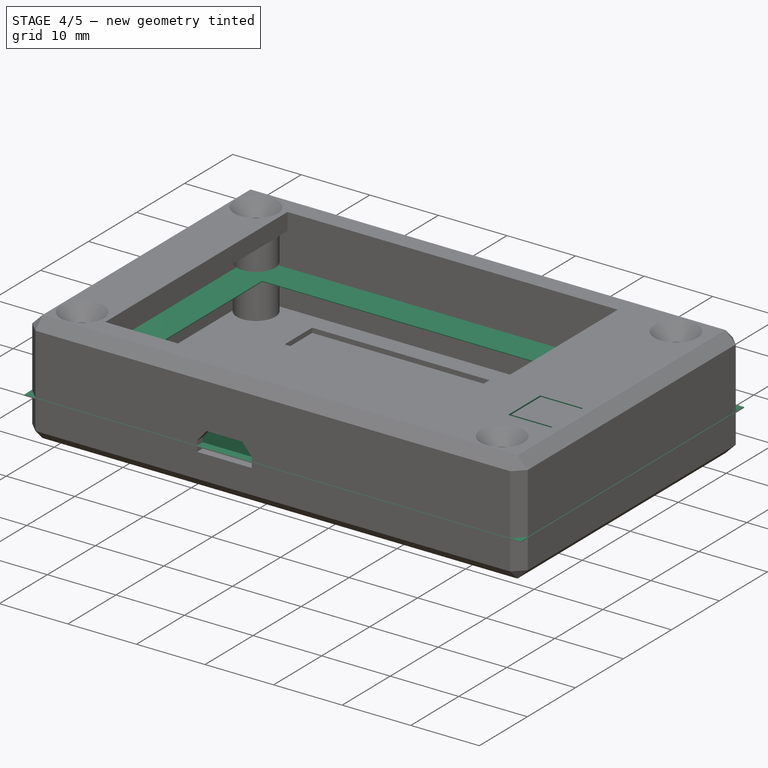
[diagram: stage 4 of 5 — iso view after this stage's code; geometry added in this stage tinted green]
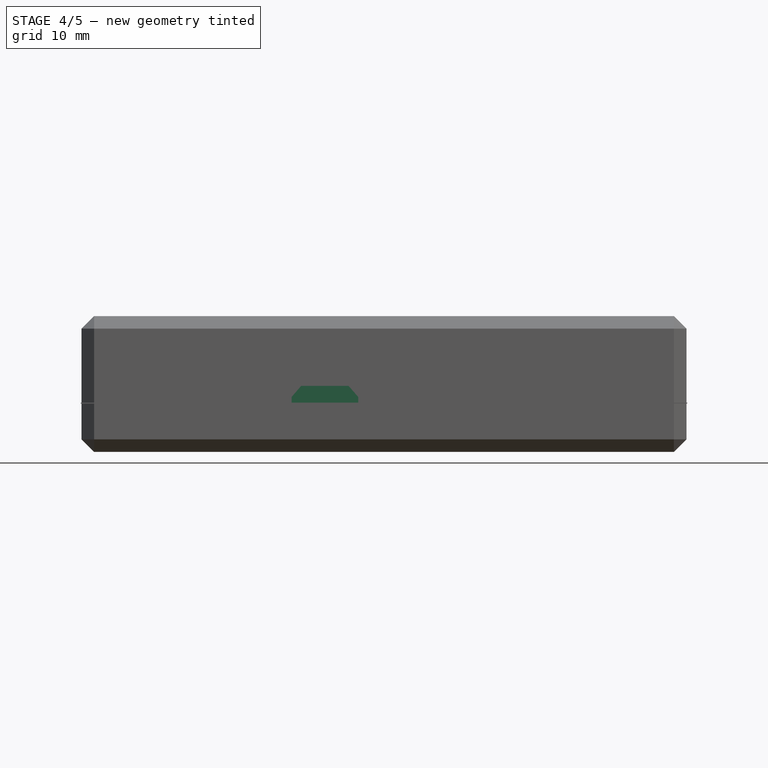
[diagram: stage 4 of 5 — front view after this stage's code; geometry added in this stage tinted green]
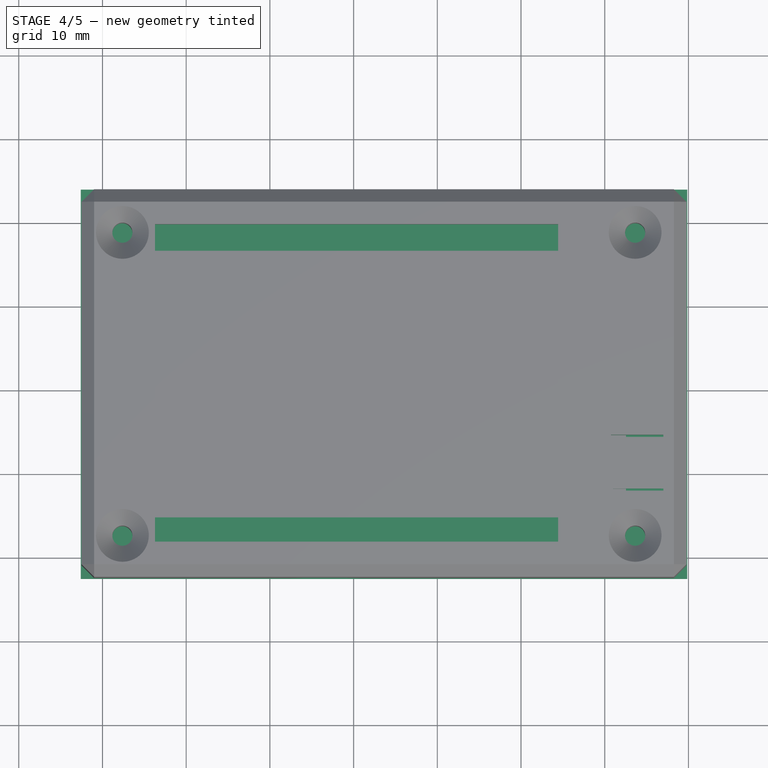
[diagram: stage 4 of 5 — top view after this stage's code; geometry added in this stage tinted green]
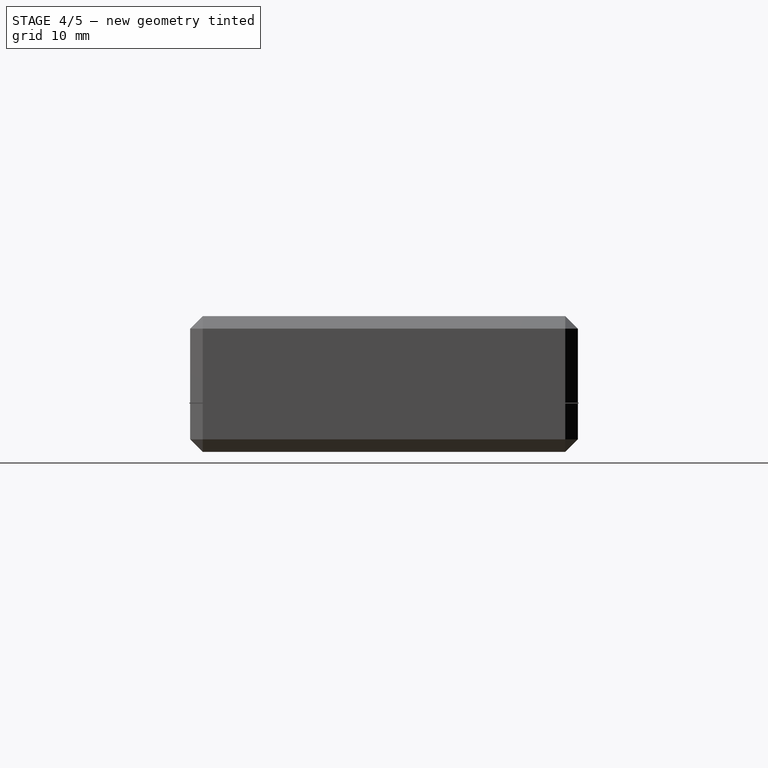
[diagram: stage 4 of 5 — right view after this stage's code; geometry added in this stage tinted green]
FEATURE [Sketcher::SketchObject] Sketch006  label="TasterSketch"
  AttachmentOffset = pos=(0,0,5.33) rot=(0,0,1;0rad)
  FullyConstrained = true
  MapMode = 5
  Placement = pos=(0,0,5.33) rot=(0,0,1;0rad)
  Support = -> [XY_Plane]
  expr: .AttachmentOffset.Base.z = <<InnerSketchBinder>>.Placement.Base.z - <<Param>>.T_PCB + <<Param>>.T_Z
  expr: Constraints[10] = 4.5 mm + 2 * <<Param>>.T_XY
  expr: Constraints[11] = 1.2 mm + <<Param>>.T_XY
  expr: Constraints[23] = 32 mm + <<Param>>.S_SIDE
  expr: Constraints[9] = 6.5 mm + <<Param>>.S_SIDE
  sketch-geometry (8):
    g0: LineSegment StartX=6.75 StartY=0 StartZ=0 EndX=11.41 EndY=0 EndZ=0
    g1: LineSegment StartX=11.41 StartY=0 StartZ=0 EndX=11.41 EndY=-1.28 EndZ=0
    g2: LineSegment StartX=11.41 StartY=-1.28 StartZ=0 EndX=6.75 EndY=-1.28 EndZ=0
    g3: LineSegment StartX=6.75 StartY=-1.28 StartZ=0 EndX=6.75 EndY=0 EndZ=0
    g4: LineSegment StartX=32.25 StartY=0 StartZ=0 EndX=36.91 EndY=0 EndZ=0
    g5: LineSegment StartX=36.91 StartY=0 StartZ=0 EndX=36.91 EndY=-1.28 EndZ=0
    g6: LineSegment StartX=36.91 StartY=-1.28 StartZ=0 EndX=32.25 EndY=-1.28 EndZ=0
    g7: LineSegment StartX=32.25 StartY=-1.28 StartZ=0 EndX=32.25 EndY=0 EndZ=0
  constraints (24):
    c: Coincident(g0,g1)
    c: Coincident(g1,g2)
    c: Coincident(g2,g3)
    c: Coincident(g3,g0)
    c: Horizontal(g0)
    c: Horizontal(g2)
    c: Vertical(g1)
    c: Vertical(g3)
    c: PointOnObject(g0,g-1)
    c: DistanceX(g0) = 6.75
    c: DistanceX(g0,g0) = 4.66
    c: DistanceY(g1,g1) = 1.28
    c: Coincident(g4,g5)
    c: Coincident(g5,g6)
    c: Coincident(g6,g7)
    c: Coincident(g7,g4)
    c: Horizontal(g4)
    c: Horizontal(g6)
    c: Vertical(g5)
    c: Vertical(g7)
    c: PointOnObject(g4,g-1)
    c: Horizontal(g1,g6)
    c: Equal(g4,g0)
    c: DistanceX(g4) = 32.25
FEATURE [Sketcher::SketchObject] Sketch007  label="UsbSketch"
  FullyConstrained = true
  MapMode = 5
  Placement = pos=(0,0,0) rot=(1,0,0;1.5708rad)
  Support = -> [XZ_Plane]
  expr: .Constraints.H1 = 3 mm + 2 * <<Param>>.T_Z
  expr: .Constraints.W1 = 7.8 mm + 2 * <<Param>>.T_XY
  expr: .Constraints.X1 = 22.34 mm + <<Param>>.S_SIDE
  expr: .Constraints.Y1 = <<InnerSketchBinder>>.Placement.Base.z - <<Param>>.T_PCB + 0.1 mm
  expr: Constraints[22] = 5 mm + 2 * <<Param>>.T_XY
  expr: Constraints[27] = 1.5 mm
  sketch-geometry (10):
    g0: LineSegment StartX=29.15 StartY=5.37 StartZ=0 EndX=23.99 EndY=5.37 EndZ=0
    g1: LineSegment StartX=23.99 StartY=5.37 StartZ=0 EndX=22.59 EndY=3.75 EndZ=0
    g2: LineSegment StartX=22.59 StartY=3.75 StartZ=0 EndX=22.59 EndY=2.25 EndZ=0
    g3: LineSegment StartX=22.59 StartY=2.25 StartZ=0 EndX=30.55 EndY=2.25 EndZ=0
    g4: LineSegment StartX=30.55 StartY=2.25 StartZ=0 EndX=30.55 EndY=3.75 EndZ=0
    g5: LineSegment StartX=30.55 StartY=3.75 StartZ=0 EndX=29.15 EndY=5.37 EndZ=0
    g6: LineSegment StartX=22.59 StartY=3.75 StartZ=0 EndX=23.99 EndY=3.75 EndZ=0
    g7: LineSegment StartX=23.99 StartY=3.75 StartZ=0 EndX=29.15 EndY=3.75 EndZ=0
    g8: LineSegment StartX=29.15 StartY=3.75 StartZ=0 EndX=30.55 EndY=3.75 EndZ=0
    g9: GeomPoint X=22.59 Y=5.37 Z=0
  constraints (28):
    c: Horizontal(g0)
    c: Coincident(g0,g1)
    c: Coincident(g1,g2)
    c: Vertical(g2)
    c: Coincident(g2,g3)
    c: Horizontal(g3)
    c: Coincident(g3,g4)
    c: Vertical(g4)
    c: Coincident(g4,g5)
    c: Coincident(g5,g0)
    c: Horizontal(g1,g4)
    c: Coincident(g6,g1)
    c: Horizontal(g6)
    c: Coincident(g7,g6)
    c: Horizontal(g7)
    c: Coincident(g8,g7)
    c: Coincident(g8,g4)
    c: Vertical(g0,g7)
    c: Vertical(g0,g6)
    c: Equal(g8,g6)
    c: DistanceY(g3,g0) = 3.12  'H1'
    c: DistanceX(g3,g3) = 7.96  'W1'
    c: DistanceX(g0,g0) = 5.16
    c: Vertical(g9,g1)
    c: Horizontal(g9,g0)
    c: DistanceX(g9) = 22.59  'X1'
    c: DistanceY(g9) = 5.37  'Y1'
    c: DistanceY(g2,g2) = 1.5
FEATURE [Sketcher::SketchObject] Sketch008  label="ButtonSketch"
  AttachmentOffset = pos=(0,0,0.25) rot=(0,0,1;0rad)
  FullyConstrained = true
  MapMode = 5
  Placement = pos=(0,0,0.25) rot=(0,0,1;0rad)
  Support = -> [XY_Plane]
  expr: .AttachmentOffset.Base.z = <<Param>>.S_SIDE
  expr: .Constraints.H1 = 6 mm + 2 * <<Param>>.T_XY
  expr: .Constraints.W1 = 6 mm
  expr: .Constraints.X1 = <<InnerSketch>>.Constraints.W1 - <<Param>>.S_SIDE
  expr: .Constraints.Y1 = 7.7 mm + <<Param>>.S_SIDE + <<Param>>.T_XY
  expr: .Constraints.Y2 = .Constraints.H1 + 0.1 mm + 2 * <<Param>>.T_XY
  expr: Constraints[25] = .Constraints.Y2
  sketch-geometry (9):
    g0: LineSegment StartX=60.75 StartY=14.45 StartZ=0 EndX=67.01 EndY=14.45 EndZ=0
    g1: LineSegment StartX=67.01 StartY=14.45 StartZ=0 EndX=67.01 EndY=14.19 EndZ=0
    g2: LineSegment StartX=67.01 StartY=7.77 StartZ=0 EndX=60.75 EndY=7.77 EndZ=0
    g3: LineSegment StartX=60.75 StartY=7.77 StartZ=0 EndX=60.75 EndY=14.45 EndZ=0
    g4: LineSegment StartX=61.01 StartY=14.19 StartZ=0 EndX=67.01 EndY=14.19 EndZ=0
    g5: LineSegment StartX=67.01 StartY=8.03 StartZ=0 EndX=61.01 EndY=8.03 EndZ=0
    g6: LineSegment StartX=61.01 StartY=8.03 StartZ=0 EndX=61.01 EndY=14.19 EndZ=0
    g7: LineSegment StartX=67.01 StartY=8.03 StartZ=0 EndX=67.01 EndY=7.77 EndZ=0
    g8: LineSegment StartX=61.01 StartY=8.03 StartZ=0 EndX=60.75 EndY=8.03 EndZ=0
  constraints (29):
    c: Coincident(g0,g1)
    c: Coincident(g7,g2)
    c: Coincident(g2,g3)
    c: Coincident(g3,g0)
    c: Horizontal(g0)
    c: Horizontal(g2)
    c: Vertical(g1)
    c: Vertical(g3)
    c: Coincident(g5,g6)
    c: Coincident(g6,g4)
    c: Horizontal(g4)
    c: Horizontal(g5)
    c: Vertical(g6)
    c: Coincident(g4,g1)
    c: Coincident(g5,g7)
    c: Vertical(g1,g5)
    c: Coincident(g8,g5)
    c: PointOnObject(g8,g3)
    c: Horizontal(g8)
    c: DistanceY(g6,g6) = 6.16  'H1'
    c: DistanceX(g5,g5) = 6  'W1'
    c: Vertical(g7)
    c: DistanceY(g2,g1) = 6.42  'Y2'
    c: DistanceX(g5) = 67.01  'X1'
    c: DistanceY(g5) = 8.03  'Y1'
    c: DistanceY(g5,g0) = 6.42
    c: Equal(g7,g8)
    c: DistanceY(g3,g3) = 6.68  'H2'
    c: DistanceX(g2,g2) = 6.26  'W2'
FEATURE [Sketcher::SketchObject] Sketch009  label="ButtonPeerSketch"
  AttachmentOffset = pos=(0,0,13.41) rot=(0,0,1;0rad)
  FullyConstrained = false
  MapMode = 5
  Placement = pos=(0,0,13.41) rot=(0,0,1;0rad)
  Support = -> [XY_Plane]
  expr: .AttachmentOffset.Base.z = <<OuterSketch>>.Placement.Base.z + <<OuterPad>>.Length
  expr: Constraints[10] = <<ButtonSketch>>.Constraints.W1
  expr: Constraints[11] = <<ButtonSketch>>.Constraints.H1
  expr: Constraints[34] = 3.4 mm
  expr: Constraints[36] = 4.5 mm
  expr: Constraints[8] = <<ButtonSketch>>.Constraints.X1 - <<Param>>.S_SIDE - 0.5 mm
  expr: Constraints[9] = <<ButtonSketch>>.Constraints.Y1
  sketch-geometry (15):
    g0: LineSegment StartX=60.26 StartY=14.19 StartZ=0 EndX=66.26 EndY=14.19 EndZ=0
    g1: LineSegment StartX=66.26 StartY=14.19 StartZ=0 EndX=66.26 EndY=8.03 EndZ=0
    g2: LineSegment StartX=66.26 StartY=8.03 StartZ=0 EndX=60.26 EndY=8.03 EndZ=0
    g3: LineSegment StartX=60.26 StartY=8.03 StartZ=0 EndX=60.26 EndY=14.19 EndZ=0
    g4: ArcOfCircle CenterX=62.9093 CenterY=11.6607 CenterZ=0 NormalX=0 NormalY=0 NormalZ=1 AngleXU=0 Radius=1.14926 StartAngle=1.5708 EndAngle=3.14159
    g5: LineSegment StartX=62.9093 StartY=12.81 StartZ=0 EndX=65.1107 EndY=12.81 EndZ=0
    g6: ArcOfCircle CenterX=65.1107 CenterY=11.6607 CenterZ=0 NormalX=0 NormalY=0 NormalZ=1 AngleXU=0 Radius=1.14926 StartAngle=0 EndAngle=1.5708
    g7: LineSegment StartX=66.26 StartY=11.6607 StartZ=0 EndX=66.26 EndY=10.5593 EndZ=0
    g8: ArcOfCircle CenterX=65.1107 CenterY=10.5593 CenterZ=0 NormalX=0 NormalY=0 NormalZ=1 AngleXU=0 Radius=1.14926 StartAngle=4.71239 EndAngle=6.28319
    g9: LineSegment StartX=65.1107 StartY=9.41 StartZ=0 EndX=62.9093 EndY=9.41 EndZ=0
    g10: ArcOfCircle CenterX=62.9093 CenterY=10.5593 CenterZ=0 NormalX=0 NormalY=0 NormalZ=1 AngleXU=0 Radius=1.14926 StartAngle=3.14159 EndAngle=4.71239
    g11: LineSegment StartX=61.76 StartY=10.5593 StartZ=0 EndX=61.76 EndY=11.6607 EndZ=0
    g12: GeomPoint X=61.76 Y=12.81 Z=0
    g13: GeomPoint X=66.26 Y=9.41 Z=0
    g14: LineSegment StartX=64.01 StartY=11.11 StartZ=0 EndX=66.26 EndY=11.11 EndZ=0
  constraints (37):
    c: Coincident(g0,g1)
    c: Coincident(g1,g2)
    c: Coincident(g2,g3)
    c: Coincident(g3,g0)
    c: Horizontal(g0)
    c: Horizontal(g2)
    c: Vertical(g1)
    c: Vertical(g3)
    c: DistanceX(g1) = 66.26
    c: DistanceY(g1) = 8.03
    c: DistanceX(g2,g2) = 6
    c: DistanceY(g1,g1) = 6.16
    c: Tangent(g4,g5) = 1.5708
    c: Tangent(g5,g6) = 1.5708
    c: Tangent(g6,g7) = 1.5708
    c: Tangent(g7,g8) = 1.5708
    c: Tangent(g8,g9) = 1.5708
    c: Tangent(g9,g10) = 1.5708
    c: Tangent(g10,g11) = 1.5708
    c: Tangent(g11,g4) = 1.5708
    c: Horizontal(g5)
    c: Horizontal(g9)
    c: Vertical(g7)
    c: Vertical(g11)
    c: Equal(g4,g6)
    c: Equal(g6,g8)
    c: Equal(g8,g10)
    c: PointOnObject(g12,g5)
    c: PointOnObject(g12,g11)
    c: PointOnObject(g13,g7)
    c: PointOnObject(g13,g9)
    c: Horizontal(g14)
    c: Symmetric(g4,g8,g14)
    c: Symmetric(g1,g0,g14)
    c: DistanceY(g9,g4) = 3.4
    c: Vertical(g6,g0)
    c: DistanceX(g10,g7) = 4.5
FEATURE [Sketcher::SketchObject] Sketch010  label="GapSketch"
  AttachmentOffset = pos=(0,0,-20.655) rot=(0,0,1;0rad)
  FullyConstrained = true
  MapMode = 5
  Placement = pos=(0,20.655,4.6e-15) rot=(1,0,0;1.5708rad)
  Support = -> [XZ_Plane001]
  expr: .AttachmentOffset.Base.z = -<<InnerSketch>>.Constraints.H1 / 2
  expr: .Constraints.Y1 = <<InnerSketchBinder>>.Placement.Base.z - <<Param>>.S_SIDE - <<Param>>.T_PCB + <<Param>>.T_Z
  expr: .Constraints.Y2 = .Constraints.Y1 - 2 * <<Param>>.T_Z
  expr: Constraints[16] = -<<Param>>.T_WALL - 0.1 mm
  expr: Constraints[26] = <<Param>>.T_XY
  expr: Constraints[27] = <<Param>>.H_LATCH
  sketch-geometry (9):
    g0: LineSegment StartX=4.725 StartY=5.08 StartZ=0 EndX=-1.355 EndY=5.08 EndZ=0
    g1: LineSegment StartX=-1.355 StartY=5.08 StartZ=0 EndX=-1.355 EndY=3.08 EndZ=0
    g2: LineSegment StartX=-1.355 StartY=3.08 StartZ=0 EndX=-2.6 EndY=3.08 EndZ=0
    g3: LineSegment StartX=-2.6 StartY=3.08 StartZ=0 EndX=-2.6 EndY=2.96 EndZ=0
    g4: LineSegment StartX=-2.6 StartY=2.96 StartZ=0 EndX=-1.275 EndY=2.96 EndZ=0
    g5: LineSegment StartX=-1.275 StartY=2.96 StartZ=0 EndX=-1.275 EndY=4.96 EndZ=0
    g6: LineSegment StartX=-1.275 StartY=4.96 StartZ=0 EndX=4.725 EndY=4.96 EndZ=0
    g7: LineSegment StartX=4.725 StartY=4.96 StartZ=0 EndX=4.725 EndY=5.08 EndZ=0
    g8: LineSegment StartX=-1.275 StartY=2.96 StartZ=0 EndX=0.05 EndY=2.96 EndZ=0
  constraints (28):
    c: Horizontal(g0)
    c: Coincident(g0,g1)
    c: Vertical(g1)
    c: Coincident(g1,g2)
    c: Horizontal(g2)
    c: Coincident(g2,g3)
    c: Coincident(g3,g4)
    c: Horizontal(g4)
    c: Coincident(g4,g5)
    c: Vertical(g5)
    c: Coincident(g5,g6)
    c: Horizontal(g6)
    c: Coincident(g6,g7)
    c: Coincident(g7,g0)
    c: Vertical(g7)
    c: Vertical(g3)
    c: DistanceX(g2) = -2.6
    c: DistanceY(g0) = 5.08  'Y1'
    c: DistanceY(g5) = 4.96  'Y2'
    c: Equal(g1,g5)
    c: DistanceX(g6,g6) = 6
    c: Horizontal(g8)
    c: DistanceX(g8,g8) = 1.325  'W1'
    c: Equal(g4,g8)
    c: DistanceX(g8) = 0.05
    c: Coincident(g4,g8)
    c: DistanceX(g1,g4) = 0.08
    c: DistanceY(g1,g1) = 2
FEATURE [PartDesign::AdditivePipe] AdditivePipe
  AuxilleryCurvelinear = true
  AuxillerySpineTangent = false
  Binormal = (0,0,0)
  Mode = 0
  Placement = pos=(0,0,0) rot=(1,0,0;1.5708rad)
  Profile = -> Sketch010
  Spine = -> Sketch001
  SpineTangent = false
  Transformation = 0
  Transition = 1
FEATURE [PartDesign::Pocket] Pocket006  label="ButtonPocket"
  BaseFeature = -> Pocket007
  Direction = (0,0,-1)
  Length = 5
  Length2 = 5
  Profile = -> Sketch008
  ReferenceAxis = -> Sketch008 [N_Axis]
  Reversed = true
  Type = 1
FEATURE [PartDesign::Pocket] Pocket008  label="ButtonCarvePocket"
  BaseFeature = -> Pocket006
  Direction = (0,1,2e-16)
  Length = 6.16
  Length2 = 5
  Profile = -> Sketch012
  ReferenceAxis = -> Sketch012 [N_Axis]
  Type = 0
  expr: Length = <<ButtonSketch>>.Constraints.H1
FEATURE [PartDesign::Pad] Pad002  label="ButtonPeerPad"
  BaseFeature = -> Pocket008
  Direction = (0,0,1)
  Length = 4
  Length2 = 10
  Profile = -> Sketch009
  ReferenceAxis = -> Sketch009 [N_Axis]
  Reversed = true
  Type = 0
  expr: Length = <<Param>>.T_WALL + <<Param>>.S_SIDE + 1.25 mm
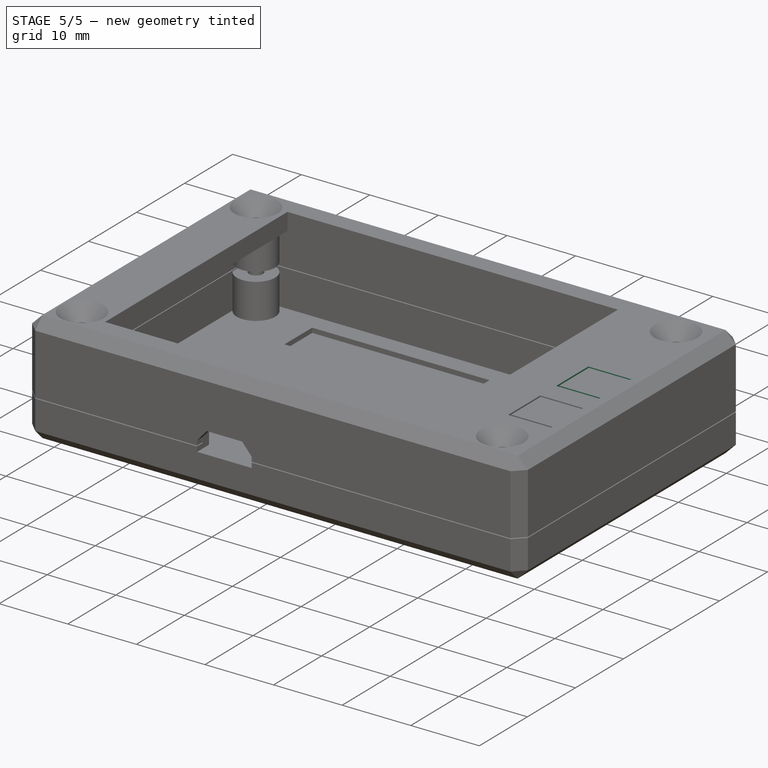
[diagram: stage 5 of 5 — iso view after this stage's code; geometry added in this stage tinted green]
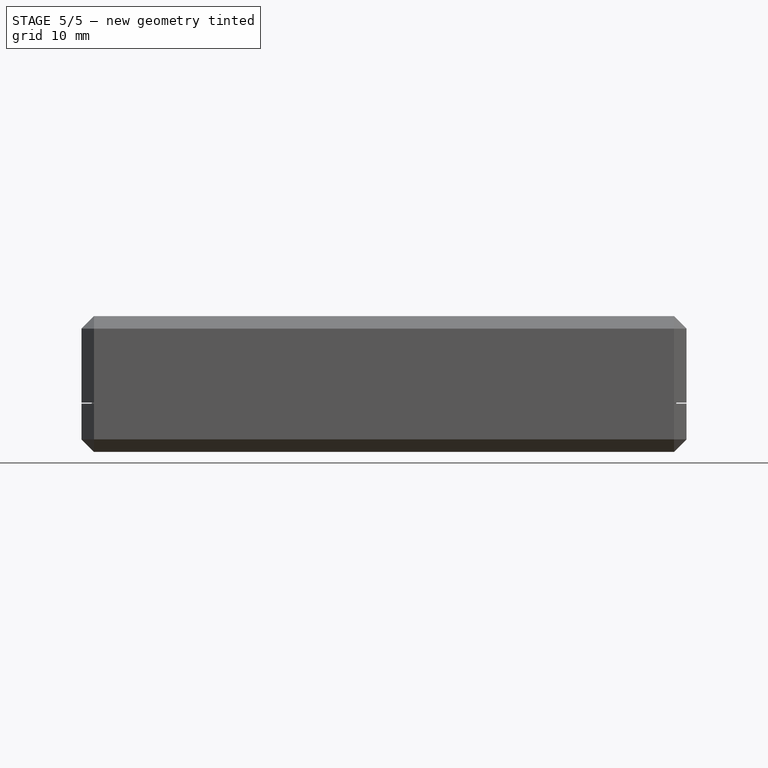
[diagram: stage 5 of 5 — front view after this stage's code; geometry added in this stage tinted green]
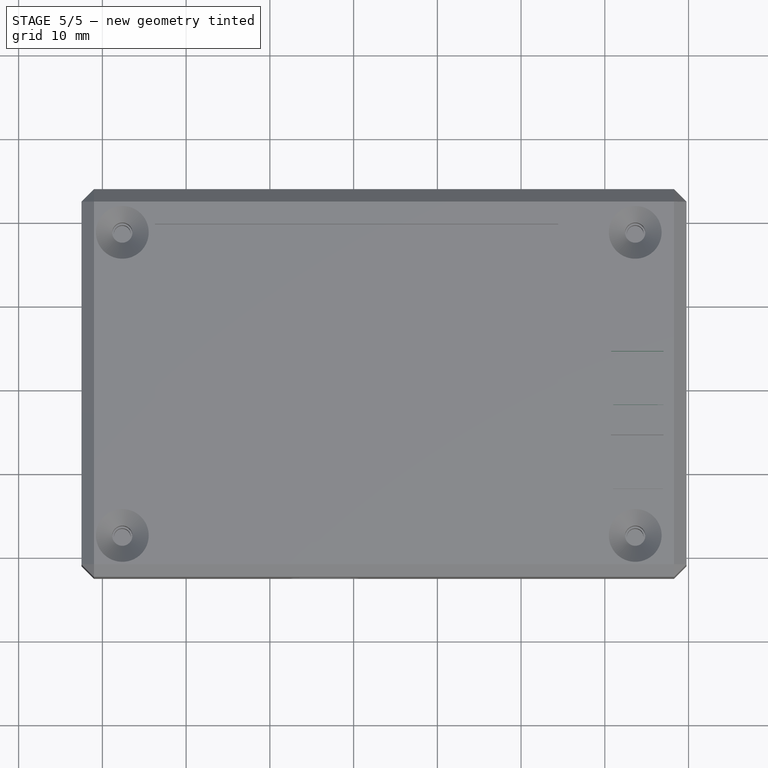
[diagram: stage 5 of 5 — top view after this stage's code; geometry added in this stage tinted green]
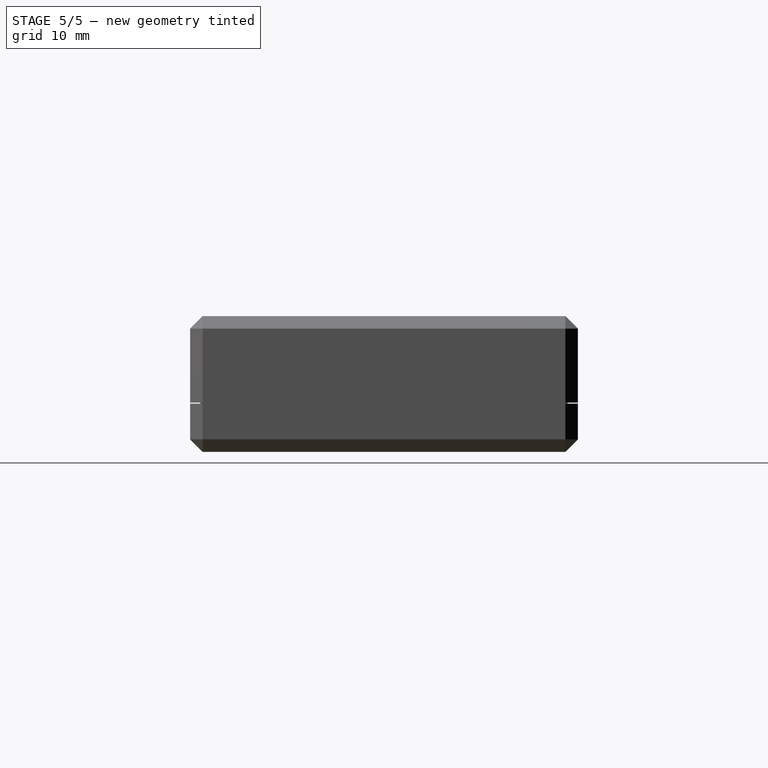
[diagram: stage 5 of 5 — right view after this stage's code; geometry added in this stage tinted green]
FEATURE [PartDesign::LinearPattern] LinearPattern  label="ButtonLinearPattern"
  BaseFeature = -> Pad002
  Direction = -> Y_Axis
  Length = 10
  Occurrences = 2
  Originals = -> [Pocket006,Pocket008,Pad002]
FEATURE [PartDesign::Body] Body
  Group = -> [Sketch,Pad,Chamfer,Sketch001,Pocket,Sketch002,Sketch003,Pad001,Hole,Hole001,Binder,Pocket002,Sketch005,Pocket003,Sketch006,Sketch013,Pocket009,Pocket004,Sketch007,Pocket005,Sketch008,Sketch011,Pocket007,Pocket006,Sketch009,Sketch012,Pocket008,Pad002,LinearPattern]
  Origin = -> Origin
  Tip = -> LinearPattern
FEATURE [Part::FeaturePython] Slice  # WARN: FeaturePython — macro-defined, semantics opaque (R4)
  Base = -> Body
  Mode = 1
  Tolerance = 0
  Tools = -> [Body001]
FEATURE [Part::FeaturePython] Slice_child0  label="Top"  # WARN: FeaturePython — macro-defined, semantics opaque (R4)
  Base = -> Slice
  FilterType = 1
  Invert = false
  OverrideMaxVal = 0
  WindowFrom = 80
  WindowTo = 100
  items = 0
FEATURE [Part::FeaturePython] Slice_child2  label="Bottom"  # WARN: FeaturePython — macro-defined, semantics opaque (R4)
  Base = -> Slice
  FilterType = 1
  Invert = false
  OverrideMaxVal = 0
  WindowFrom = 80
  WindowTo = 100
  items = 2
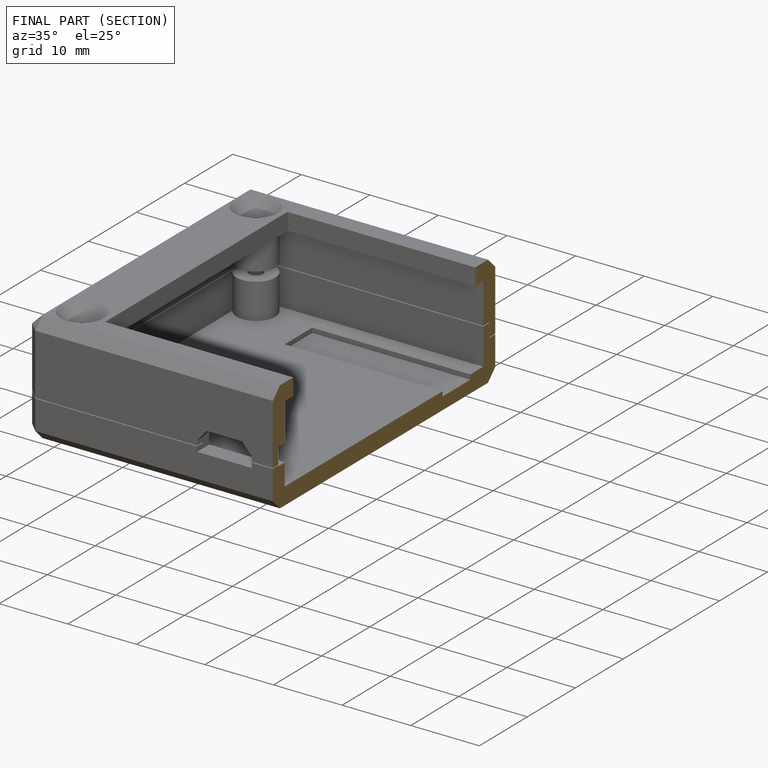
[diagram: finished part — half-section view (interior)]
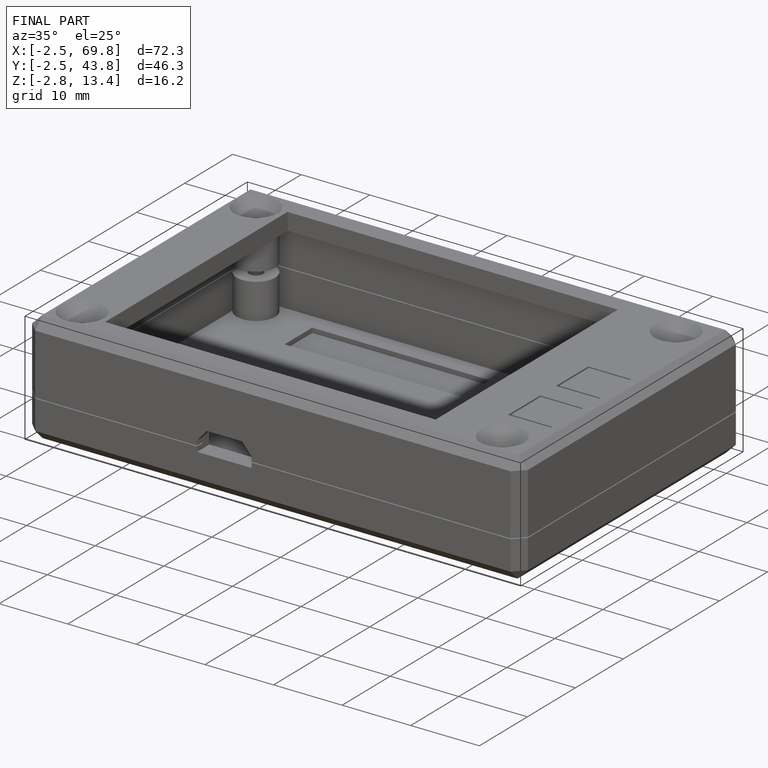
[diagram: finished part — iso view with bounding-box wireframe]
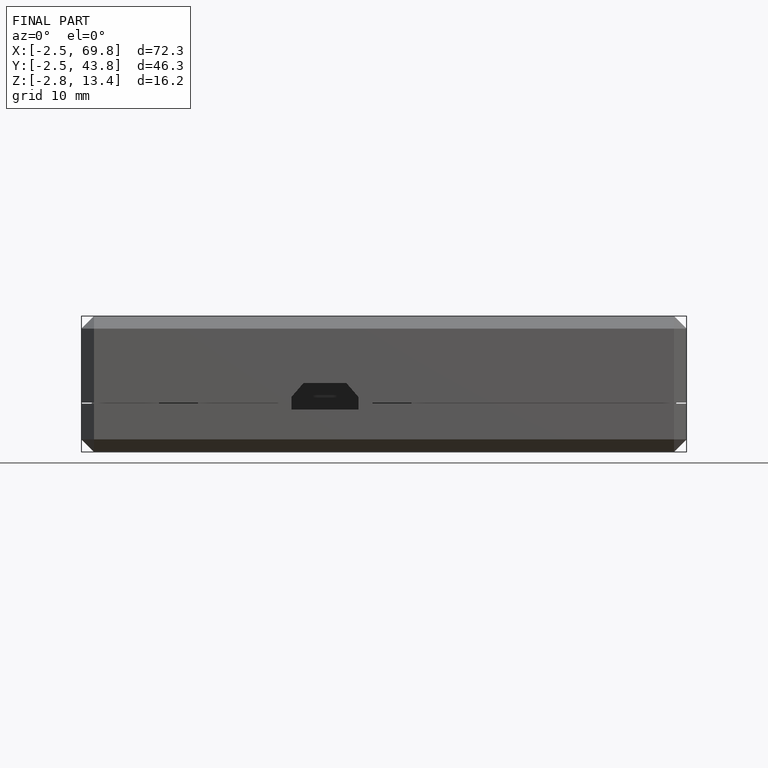
[diagram: finished part — front view with bounding-box wireframe]
